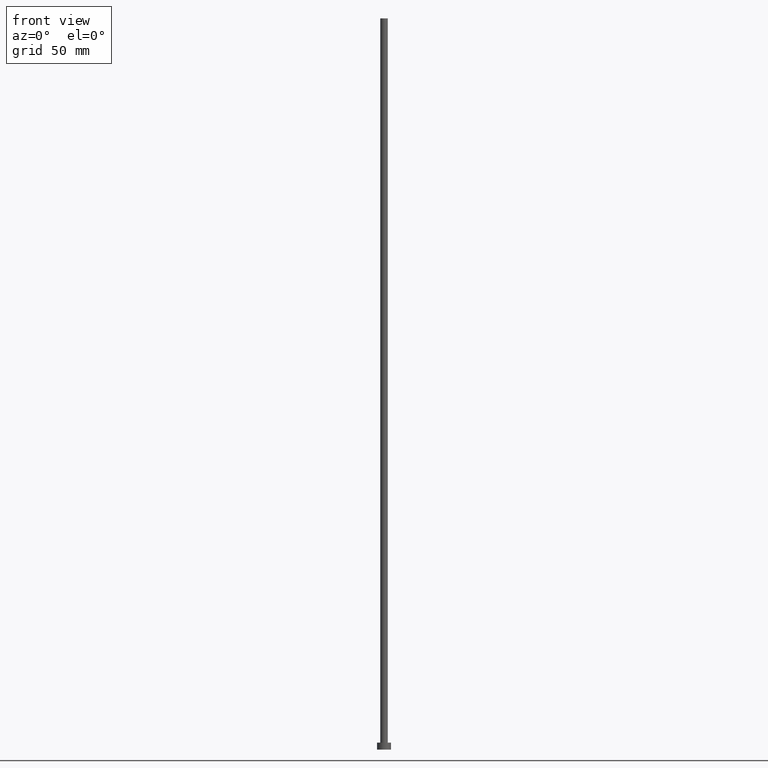
[diagram: clean part render]
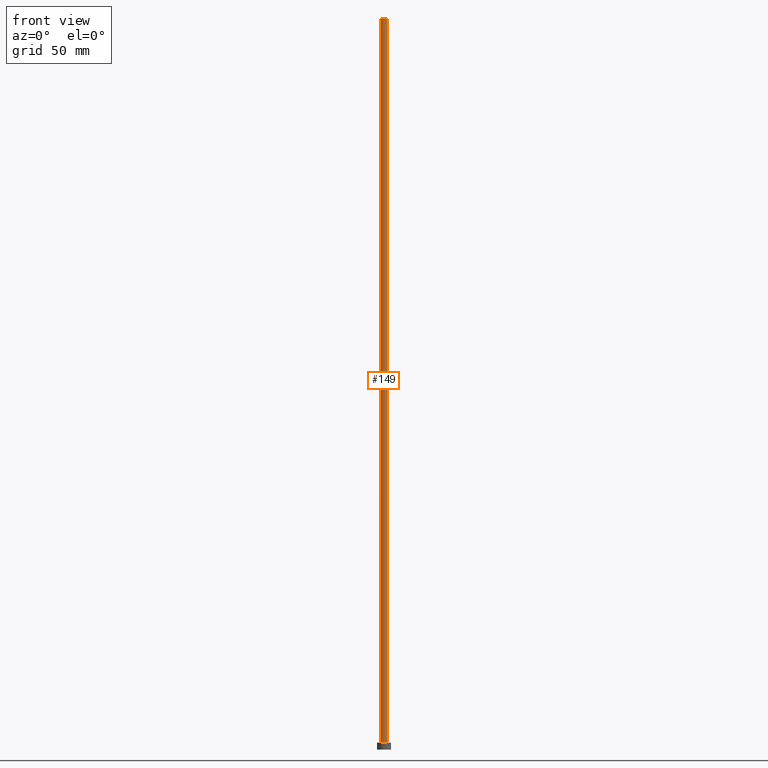
[diagram: same view with one face highlighted and labeled with its STEP entity id]
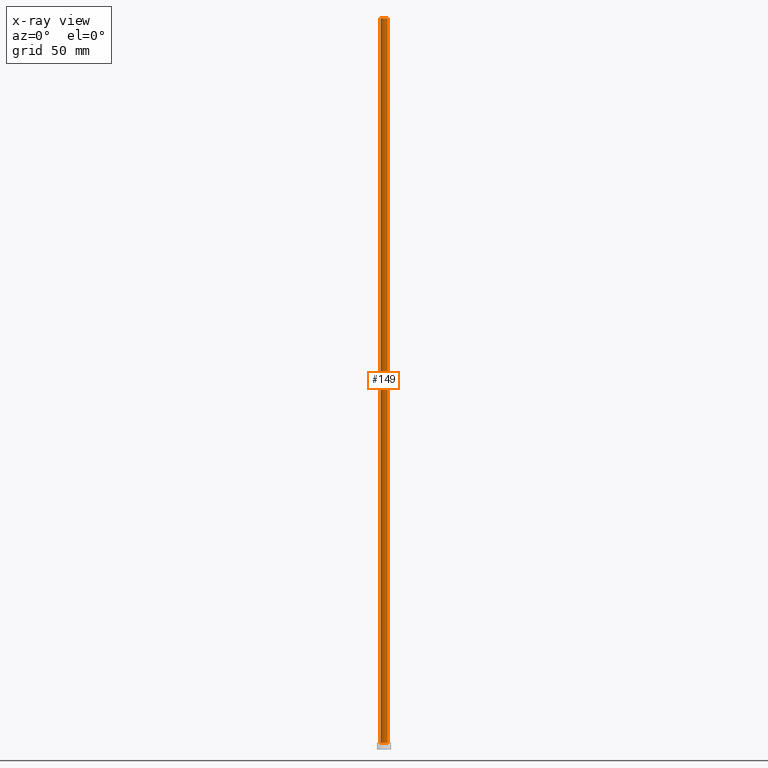
[diagram: x-ray of the same camera — body ghosted, the highlighted face saturated]
A machine part, front view. The second image highlights one B-rep face of the part: STEP entity #149.
The next image is the same camera in x-ray: the body ghosted, the highlighted face saturated — about 0% of this face is hidden behind the body in this view.
In plain terms, the highlighted cylindrical surface (edge-blend (fillet) strip) has radius 1.6 mm, axis along (-0, -0, -1).
Its self-contained STEP definition (entity closure, byte-faithful):
#8 = CARTESIAN_POINT ( 'NONE',  ( -1.600000000000000089, 0.000000000000000000, 3.000000000000000000 ) ) ;
#25 = DIRECTION ( 'NONE',  ( 1.000000000000000000, 0.000000000000000000, 0.000000000000000000 ) ) ;
#38 = CARTESIAN_POINT ( 'NONE',  ( 1.600000000000000089, 1.959434878635765230E-16, 3.000000000000000000 ) ) ;
#41 = DIRECTION ( 'NONE',  ( -1.000000000000000000, 0.000000000000000000, 0.000000000000000000 ) ) ;
#42 = ORIENTED_EDGE ( 'NONE', *, *, #198, .F. ) ;
#43 = FACE_OUTER_BOUND ( 'NONE', #241, .T. ) ;
#45 = ORIENTED_EDGE ( 'NONE', *, *, #163, .F. ) ;
#46 = CARTESIAN_POINT ( 'NONE',  ( -1.600000000000000089, 0.000000000000000000, 315.0000000000000000 ) ) ;
#51 = DIRECTION ( 'NONE',  ( -0.000000000000000000, -0.000000000000000000, -1.000000000000000000 ) ) ;
#55 = CIRCLE ( 'NONE', #208, 1.600000000000000089 ) ;
#56 = CARTESIAN_POINT ( 'NONE',  ( 0.000000000000000000, 0.000000000000000000, 3.000000000000000000 ) ) ;
#72 = CARTESIAN_POINT ( 'NONE',  ( 0.000000000000000000, 0.000000000000000000, 315.0000000000000000 ) ) ;
#76 = CYLINDRICAL_SURFACE ( 'NONE', #175, 1.600000000000000089 ) ;
#77 = EDGE_CURVE ( 'NONE', #90, #124, #251, .T. ) ;
#81 = VERTEX_POINT ( 'NONE', #174 ) ;
#90 = VERTEX_POINT ( 'NONE', #255 ) ;
#97 = DIRECTION ( 'NONE',  ( 1.000000000000000000, 0.000000000000000000, 0.000000000000000000 ) ) ;
#103 = CIRCLE ( 'NONE', #252, 1.600000000000000089 ) ;
#118 = ORIENTED_EDGE ( 'NONE', *, *, #77, .T. ) ;
#119 = DIRECTION ( 'NONE',  ( 0.000000000000000000, 0.000000000000000000, 1.000000000000000000 ) ) ;
#124 = VERTEX_POINT ( 'NONE', #8 ) ;
#138 = EDGE_CURVE ( 'NONE', #124, #204, #103, .T. ) ;
#139 = DIRECTION ( 'NONE',  ( -0.000000000000000000, -0.000000000000000000, -1.000000000000000000 ) ) ;
#142 = CARTESIAN_POINT ( 'NONE',  ( 1.600000000000000089, 1.959434878635765230E-16, 315.0000000000000000 ) ) ;
#147 = VECTOR ( 'NONE', #139, 1000.000000000000000 ) ;
#149 = ADVANCED_FACE ( 'NONE', ( #43 ), #76, .T. ) ;
#161 = DIRECTION ( 'NONE',  ( -0.000000000000000000, -0.000000000000000000, -1.000000000000000000 ) ) ;
#163 = EDGE_CURVE ( 'NONE', #90, #81, #55, .T. ) ;
#174 = CARTESIAN_POINT ( 'NONE',  ( 1.600000000000000089, 1.959434878635765230E-16, 315.0000000000000000 ) ) ;
#175 = AXIS2_PLACEMENT_3D ( 'NONE', #202, #161, #41 ) ;
#180 = DIRECTION ( 'NONE',  ( 0.000000000000000000, 0.000000000000000000, 1.000000000000000000 ) ) ;
#198 = EDGE_CURVE ( 'NONE', #81, #204, #223, .T. ) ;
#202 = CARTESIAN_POINT ( 'NONE',  ( 0.000000000000000000, 0.000000000000000000, 315.0000000000000000 ) ) ;
#204 = VERTEX_POINT ( 'NONE', #38 ) ;
#208 = AXIS2_PLACEMENT_3D ( 'NONE', #72, #119, #25 ) ;
#211 = ORIENTED_EDGE ( 'NONE', *, *, #138, .T. ) ;
#219 = VECTOR ( 'NONE', #51, 1000.000000000000000 ) ;
#223 = LINE ( 'NONE', #142, #147 ) ;
#241 = EDGE_LOOP ( 'NONE', ( #42, #45, #118, #211 ) ) ;
#251 = LINE ( 'NONE', #46, #219 ) ;
#252 = AXIS2_PLACEMENT_3D ( 'NONE', #56, #180, #97 ) ;
#255 = CARTESIAN_POINT ( 'NONE',  ( -1.600000000000000089, 0.000000000000000000, 315.0000000000000000 ) ) ;